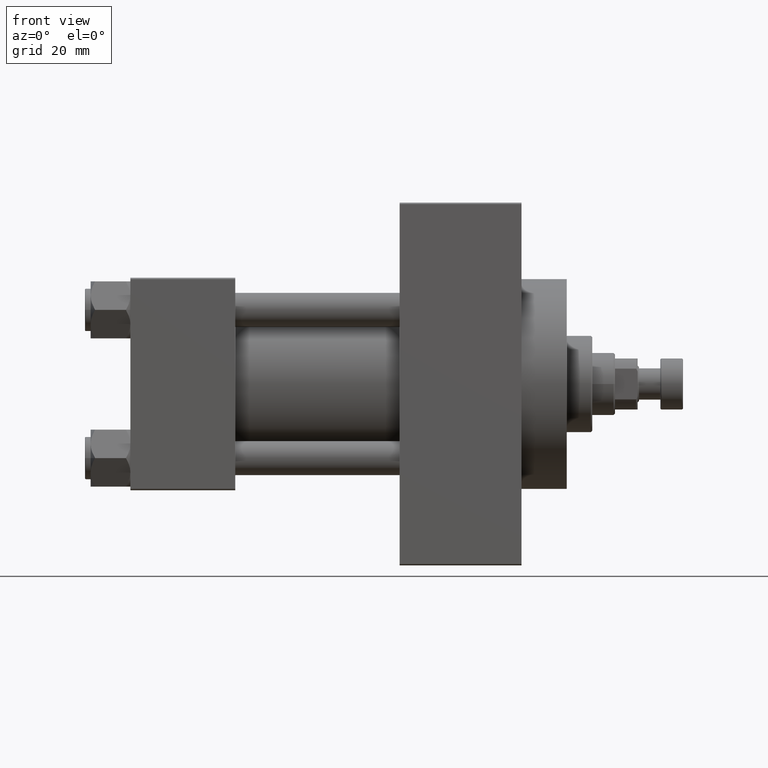
[diagram: clean part render]
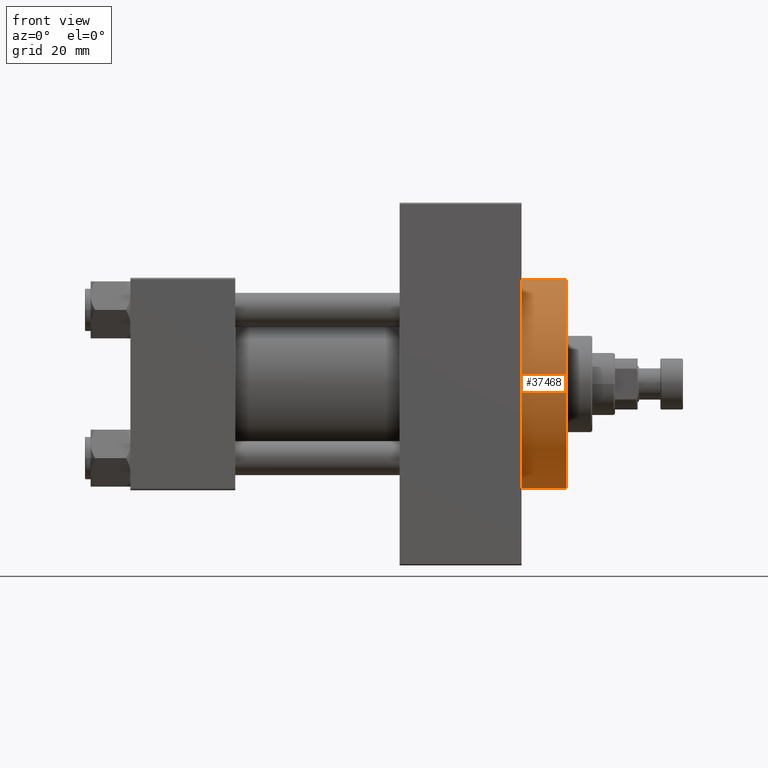
[diagram: same view with one face highlighted and labeled with its STEP entity id]
A machine part, front view. The second image highlights one B-rep face of the part: STEP entity #37468.
In plain terms, the highlighted cylindrical surface (partial cylindrical patch) has radius 37 mm, axis along (-1, -0, -0).
Its self-contained STEP definition (entity closure, byte-faithful):
#371 = CIRCLE ( 'NONE', #39645, 37.00000000000000000 ) ;
#1770 = EDGE_LOOP ( 'NONE', ( #14408, #8626, #40919, #44442 ) ) ;
#2314 = AXIS2_PLACEMENT_3D ( 'NONE', #12894, #9526, #42526 ) ;
#2622 = EDGE_CURVE ( 'NONE', #27935, #43017, #36077, .T. ) ;
#4223 = DIRECTION ( 'NONE',  ( 1.000000000000000000, 0.000000000000000000, 0.000000000000000000 ) ) ;
#4848 = DIRECTION ( 'NONE',  ( -1.000000000000000000, -0.000000000000000000, -0.000000000000000000 ) ) ;
#5173 = EDGE_CURVE ( 'NONE', #27935, #16955, #9191, .T. ) ;
#6653 = VERTEX_POINT ( 'NONE', #35109 ) ;
#8626 = ORIENTED_EDGE ( 'NONE', *, *, #2622, .F. ) ;
#9191 = LINE ( 'NONE', #37858, #12304 ) ;
#9526 = DIRECTION ( 'NONE',  ( -1.000000000000000000, -0.000000000000000000, -0.000000000000000000 ) ) ;
#12304 = VECTOR ( 'NONE', #4848, 1000.000000000000000 ) ;
#12894 = CARTESIAN_POINT ( 'NONE',  ( 154.0000000000000284, 0.000000000000000000, 0.000000000000000000 ) ) ;
#14408 = ORIENTED_EDGE ( 'NONE', *, *, #27140, .F. ) ;
#14741 = DIRECTION ( 'NONE',  ( 1.000000000000000000, 0.000000000000000000, 0.000000000000000000 ) ) ;
#16955 = VERTEX_POINT ( 'NONE', #21247 ) ;
#21247 = CARTESIAN_POINT ( 'NONE',  ( 138.0000000000000000, 0.000000000000000000, 37.00000000000000000 ) ) ;
#21776 = CARTESIAN_POINT ( 'NONE',  ( 154.0000000000000284, 4.531193156845206793E-15, -37.00000000000000000 ) ) ;
#23253 = DIRECTION ( 'NONE',  ( 0.000000000000000000, 0.000000000000000000, -1.000000000000000000 ) ) ;
#23926 = CARTESIAN_POINT ( 'NONE',  ( 154.0000000000000284, 4.531193156845206793E-15, -37.00000000000000000 ) ) ;
#24858 = EDGE_CURVE ( 'NONE', #16955, #6653, #371, .T. ) ;
#27140 = EDGE_CURVE ( 'NONE', #43017, #6653, #31164, .T. ) ;
#27935 = VERTEX_POINT ( 'NONE', #29787 ) ;
#29787 = CARTESIAN_POINT ( 'NONE',  ( 154.0000000000000284, 0.000000000000000000, 37.00000000000000000 ) ) ;
#31164 = LINE ( 'NONE', #23926, #32861 ) ;
#32861 = VECTOR ( 'NONE', #35020, 1000.000000000000000 ) ;
#33295 = CARTESIAN_POINT ( 'NONE',  ( 138.0000000000000000, 0.000000000000000000, 0.000000000000000000 ) ) ;
#35020 = DIRECTION ( 'NONE',  ( -1.000000000000000000, -0.000000000000000000, -0.000000000000000000 ) ) ;
#35109 = CARTESIAN_POINT ( 'NONE',  ( 138.0000000000000000, 4.531193156845206793E-15, -37.00000000000000000 ) ) ;
#36077 = CIRCLE ( 'NONE', #42233, 37.00000000000000000 ) ;
#37242 = CARTESIAN_POINT ( 'NONE',  ( 154.0000000000000284, 0.000000000000000000, 0.000000000000000000 ) ) ;
#37468 = ADVANCED_FACE ( 'NONE', ( #46876 ), #42289, .T. ) ;
#37858 = CARTESIAN_POINT ( 'NONE',  ( 154.0000000000000284, 0.000000000000000000, 37.00000000000000000 ) ) ;
#39645 = AXIS2_PLACEMENT_3D ( 'NONE', #33295, #14741, #40285 ) ;
#40285 = DIRECTION ( 'NONE',  ( 0.000000000000000000, 0.000000000000000000, -1.000000000000000000 ) ) ;
#40919 = ORIENTED_EDGE ( 'NONE', *, *, #5173, .T. ) ;
#42233 = AXIS2_PLACEMENT_3D ( 'NONE', #37242, #4223, #23253 ) ;
#42289 = CYLINDRICAL_SURFACE ( 'NONE', #2314, 37.00000000000000000 ) ;
#42526 = DIRECTION ( 'NONE',  ( 0.000000000000000000, 0.000000000000000000, 1.000000000000000000 ) ) ;
#43017 = VERTEX_POINT ( 'NONE', #21776 ) ;
#44442 = ORIENTED_EDGE ( 'NONE', *, *, #24858, .T. ) ;
#46876 = FACE_OUTER_BOUND ( 'NONE', #1770, .T. ) ;